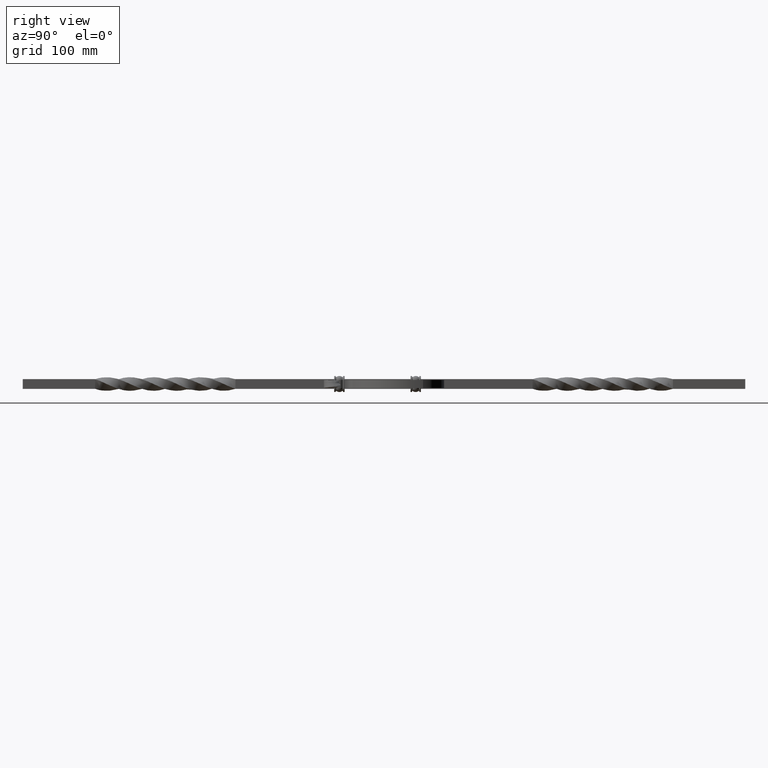
[diagram: clean part render]
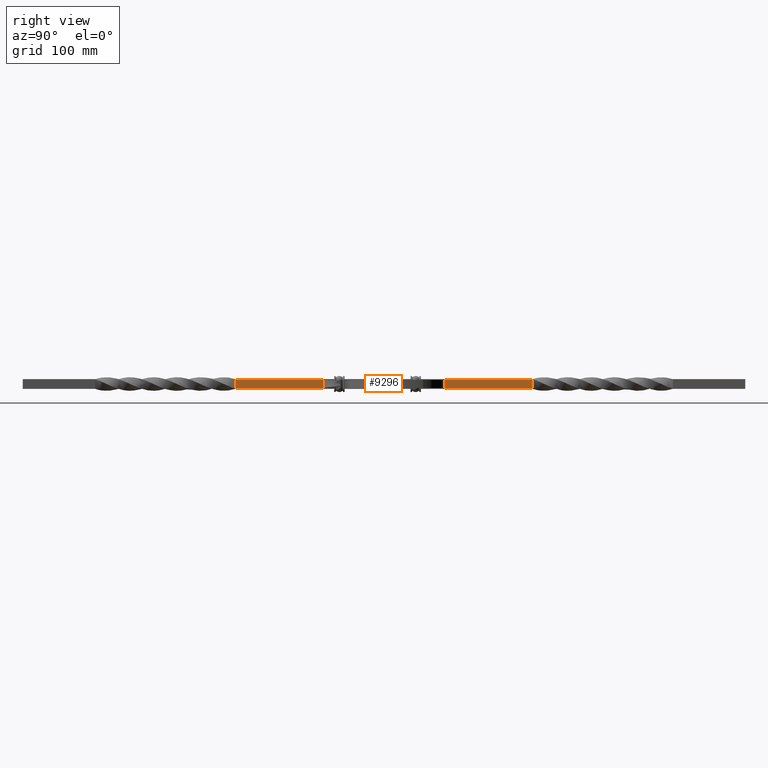
[diagram: same view with one face highlighted and labeled with its STEP entity id]
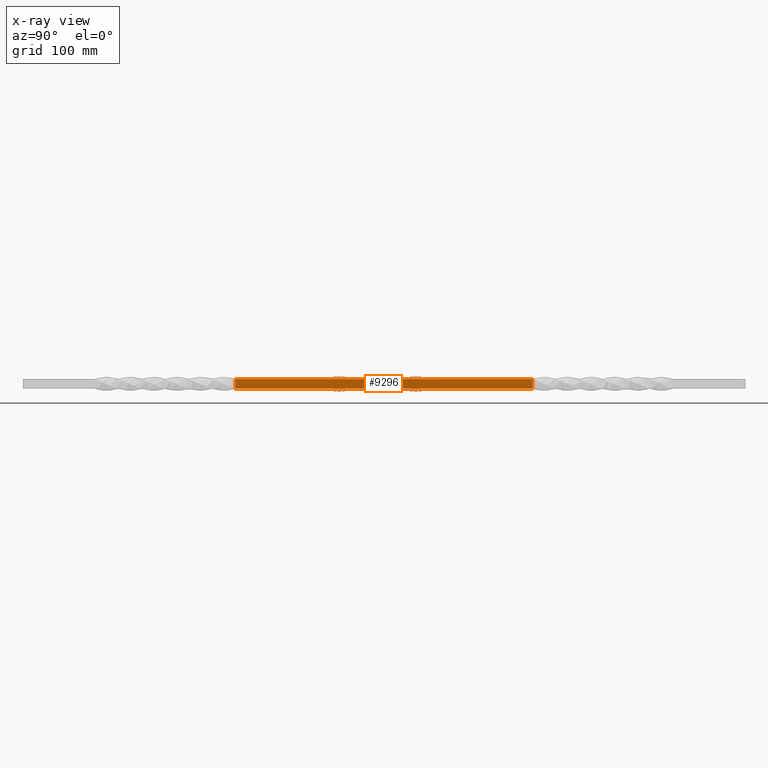
[diagram: x-ray of the same camera — body ghosted, the highlighted face saturated]
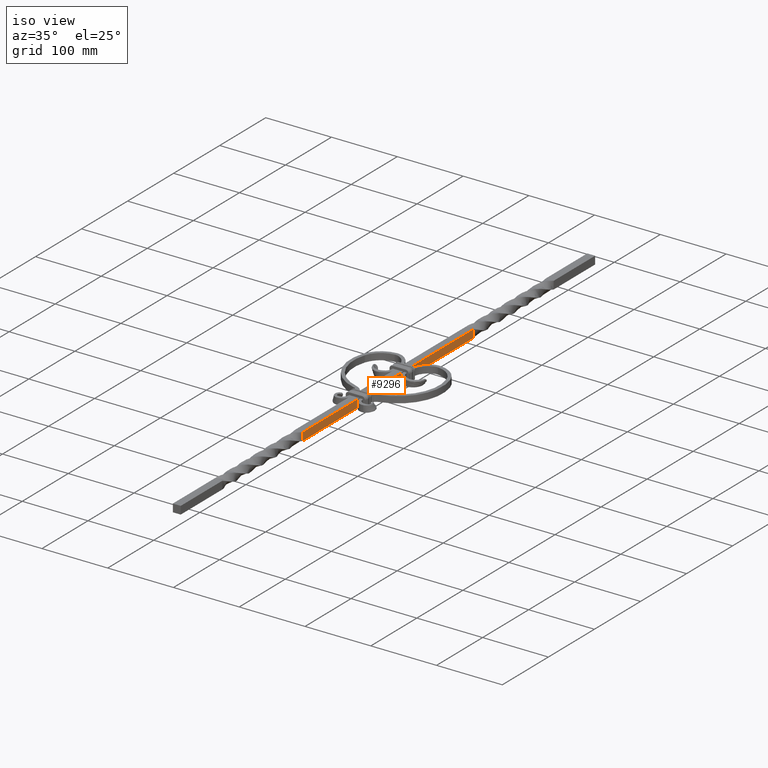
[diagram: same view with one face highlighted and labeled with its STEP entity id]
A machine part, right view. The second image highlights one B-rep face of the part: STEP entity #9296.
The next image is the same camera in x-ray: the body ghosted, the highlighted face saturated — about 0% of this face is hidden behind the body in this view.
A second angle (iso view) of the same face is appended — the face is thin or edge-on in the first view.
In plain terms, the highlighted planar face has unit normal (-1, -0, -0).
Its self-contained STEP definition (entity closure, byte-faithful):
#232 = DIRECTION ( 'NONE',  ( 9.333221386254594486E-18, -1.000000000000000000, -1.800135746611762171E-17 ) ) ;
#594 = VERTEX_POINT ( 'NONE', #12030 ) ;
#721 = EDGE_CURVE ( 'NONE', #19837, #17697, #8128, .T. ) ;
#1462 = VECTOR ( 'NONE', #5356, 1000.000000000000000 ) ;
#1868 = VECTOR ( 'NONE', #12476, 1000.000000000000000 ) ;
#1890 = CARTESIAN_POINT ( 'NONE',  ( 6.000000000000023093, 450.0000000000000000, -5.999999999999964473 ) ) ;
#2282 = VERTEX_POINT ( 'NONE', #11409 ) ;
#2314 = EDGE_CURVE ( 'NONE', #15054, #4865, #11852, .T. ) ;
#2677 = DIRECTION ( 'NONE',  ( 9.333221386254594486E-18, -1.000000000000000000, -1.800135746611762479E-17 ) ) ;
#3033 = CARTESIAN_POINT ( 'NONE',  ( 6.000013611403646863, -185.0000053381125440, 6.000001659163470613 ) ) ;
#3774 = AXIS2_PLACEMENT_3D ( 'NONE', #10472, #14220, #10395 ) ;
#4024 = LINE ( 'NONE', #16845, #12216 ) ;
#4289 = EDGE_CURVE ( 'NONE', #6130, #12467, #18159, .T. ) ;
#4723 = CARTESIAN_POINT ( 'NONE',  ( 6.000012850454217173, 185.0000040164767370, -6.000001086903428593 ) ) ;
#4865 = VERTEX_POINT ( 'NONE', #6049 ) ;
#5001 = VECTOR ( 'NONE', #232, 1000.000000000000000 ) ;
#5162 = VECTOR ( 'NONE', #19052, 1000.000000000000000 ) ;
#5356 = DIRECTION ( 'NONE',  ( 9.333221386254594486E-18, -1.000000000000000000, -1.800135746611762479E-17 ) ) ;
#6049 = CARTESIAN_POINT ( 'NONE',  ( 6.000013611403646863, -185.0000053381125440, 6.000001659163470613 ) ) ;
#6130 = VERTEX_POINT ( 'NONE', #6274 ) ;
#6274 = CARTESIAN_POINT ( 'NONE',  ( 5.999999999999975131, 32.99999999999997158, 6.000000000000029310 ) ) ;
#6857 = EDGE_CURVE ( 'NONE', #12467, #8907, #16721, .T. ) ;
#6983 = EDGE_CURVE ( 'NONE', #2282, #10579, #13999, .T. ) ;
#6993 = EDGE_LOOP ( 'NONE', ( #13567, #8940, #15801, #10283, #10962, #15699, #14180, #13316, #15336, #22370, #14336, #15366 ) ) ;
#7100 = CARTESIAN_POINT ( 'NONE',  ( 6.000001498873439587, -185.0000053074768687, -6.000012699848763731 ) ) ;
#7122 = CARTESIAN_POINT ( 'NONE',  ( 5.999999999999976907, -62.04958985097748325, 6.000000000000004441 ) ) ;
#7130 = CARTESIAN_POINT ( 'NONE',  ( 5.999999999999971578, 450.0000000000000000, 6.000000000000004441 ) ) ;
#7149 = CARTESIAN_POINT ( 'NONE',  ( 5.999999999999971578, 450.0000000000000000, 6.000000000000037303 ) ) ;
#8128 = LINE ( 'NONE', #17733, #1868 ) ;
#8297 = CARTESIAN_POINT ( 'NONE',  ( 6.000001086903443692, 185.0000040164767654, 6.000012850454223390 ) ) ;
#8803 = VECTOR ( 'NONE', #18343, 1000.000000000000000 ) ;
#8907 = VERTEX_POINT ( 'NONE', #7122 ) ;
#8926 = FACE_OUTER_BOUND ( 'NONE', #6993, .T. ) ;
#8940 = ORIENTED_EDGE ( 'NONE', *, *, #16889, .F. ) ;
#9186 = LINE ( 'NONE', #17292, #10296 ) ;
#9296 = ADVANCED_FACE ( 'NONE', ( #8926 ), #17487, .F. ) ;
#9704 = EDGE_CURVE ( 'NONE', #8907, #4865, #4024, .T. ) ;
#10283 = ORIENTED_EDGE ( 'NONE', *, *, #6857, .T. ) ;
#10296 = VECTOR ( 'NONE', #18886, 1000.000000000000000 ) ;
#10395 = DIRECTION ( 'NONE',  ( -4.296331808835892763E-15, -1.800135746611766177E-17, 1.000000000000000000 ) ) ;
#10472 = CARTESIAN_POINT ( 'NONE',  ( 6.000000000000023093, 450.0000000000000000, -5.999999999999964473 ) ) ;
#10536 = VERTEX_POINT ( 'NONE', #19980 ) ;
#10579 = VERTEX_POINT ( 'NONE', #21593 ) ;
#10962 = ORIENTED_EDGE ( 'NONE', *, *, #9704, .T. ) ;
#10968 = CARTESIAN_POINT ( 'NONE',  ( 5.999999999999976019, -49.04958985097749036, 6.000000000000000888 ) ) ;
#11224 = CARTESIAN_POINT ( 'NONE',  ( 6.000000000000023093, 450.0000000000000000, -5.999999999999964473 ) ) ;
#11409 = CARTESIAN_POINT ( 'NONE',  ( 6.000012850454217173, 185.0000040164767370, -6.000001086903428593 ) ) ;
#11502 = CARTESIAN_POINT ( 'NONE',  ( 6.000014637220303371, 185.0000017354701356, 1.999999991245698050 ) ) ;
#11731 = CARTESIAN_POINT ( 'NONE',  ( 6.000021004258773161, -185.0000051440753452, 1.999996463981507766 ) ) ;
#11852 = B_SPLINE_CURVE_WITH_KNOTS ( 'NONE', 3,
 ( #22156, #18660, #11731, #3033 ),
 .UNSPECIFIED., .F., .F.,
 ( 4, 4 ),
 ( 0.000000000000000000, 1.000000000000000000 ),
 .UNSPECIFIED. ) ;
#12030 = CARTESIAN_POINT ( 'NONE',  ( 6.000001086903443692, 185.0000040164767654, 6.000012850454223390 ) ) ;
#12216 = VECTOR ( 'NONE', #20408, 1000.000000000000000 ) ;
#12467 = VERTEX_POINT ( 'NONE', #10968 ) ;
#12476 = DIRECTION ( 'NONE',  ( -9.333221386255377184E-18, 1.000000000000000000, 2.001604010742470009E-16 ) ) ;
#12862 = VECTOR ( 'NONE', #14170, 1000.000000000000000 ) ;
#13316 = ORIENTED_EDGE ( 'NONE', *, *, #721, .T. ) ;
#13567 = ORIENTED_EDGE ( 'NONE', *, *, #20373, .T. ) ;
#13999 = LINE ( 'NONE', #16528, #8803 ) ;
#14060 = CARTESIAN_POINT ( 'NONE',  ( 6.000000000000023093, 450.0000000000000000, -5.999999999999964473 ) ) ;
#14170 = DIRECTION ( 'NONE',  ( -9.333221386254517449E-18, 1.000000000000000000, 1.019903645028503710E-30 ) ) ;
#14180 = ORIENTED_EDGE ( 'NONE', *, *, #14198, .F. ) ;
#14198 = EDGE_CURVE ( 'NONE', #19837, #15054, #19985, .T. ) ;
#14220 = DIRECTION ( 'NONE',  ( -1.000000000000000000, -9.333221386254517449E-18, -4.296331808835892763E-15 ) ) ;
#14336 = ORIENTED_EDGE ( 'NONE', *, *, #6983, .F. ) ;
#14337 = EDGE_CURVE ( 'NONE', #594, #2282, #19871, .T. ) ;
#15054 = VERTEX_POINT ( 'NONE', #7100 ) ;
#15336 = ORIENTED_EDGE ( 'NONE', *, *, #18312, .F. ) ;
#15366 = ORIENTED_EDGE ( 'NONE', *, *, #14337, .F. ) ;
#15699 = ORIENTED_EDGE ( 'NONE', *, *, #2314, .F. ) ;
#15801 = ORIENTED_EDGE ( 'NONE', *, *, #4289, .T. ) ;
#15901 = CARTESIAN_POINT ( 'NONE',  ( 5.999999999999975131, 45.99999999999998579, 6.000000000000030198 ) ) ;
#16528 = CARTESIAN_POINT ( 'NONE',  ( 6.000000000000023093, 450.0000000000000000, -5.999999999999964473 ) ) ;
#16721 = LINE ( 'NONE', #7149, #5001 ) ;
#16845 = CARTESIAN_POINT ( 'NONE',  ( 5.999999999999971578, 450.0000000000000000, 6.000000000000037303 ) ) ;
#16889 = EDGE_CURVE ( 'NONE', #6130, #19120, #20742, .T. ) ;
#17292 = CARTESIAN_POINT ( 'NONE',  ( 5.999999999999971578, 450.0000000000000000, 6.000000000000037303 ) ) ;
#17438 = EDGE_CURVE ( 'NONE', #10579, #10536, #19107, .T. ) ;
#17487 = PLANE ( 'NONE',  #3774 ) ;
#17697 = VERTEX_POINT ( 'NONE', #20802 ) ;
#17733 = CARTESIAN_POINT ( 'NONE',  ( 6.000000000000026645, -49.04958985097749036, -6.000000000000000000 ) ) ;
#17918 = VECTOR ( 'NONE', #18417, 1000.000000000000000 ) ;
#18159 = LINE ( 'NONE', #20391, #17918 ) ;
#18312 = EDGE_CURVE ( 'NONE', #10536, #17697, #20409, .T. ) ;
#18343 = DIRECTION ( 'NONE',  ( 9.333221386254594486E-18, -1.000000000000000000, -1.800135746611762479E-17 ) ) ;
#18417 = DIRECTION ( 'NONE',  ( 9.333221386254594486E-18, -1.000000000000000000, -1.800135746611762171E-17 ) ) ;
#18445 = CARTESIAN_POINT ( 'NONE',  ( 6.000000000000026645, -62.04958985097748325, -6.000000000000002665 ) ) ;
#18660 = CARTESIAN_POINT ( 'NONE',  ( 6.000014259201599920, -185.0000051440639481, -2.000008254304787680 ) ) ;
#18886 = DIRECTION ( 'NONE',  ( 9.333221386254594486E-18, -1.000000000000000000, -1.800135746611762171E-17 ) ) ;
#19052 = DIRECTION ( 'NONE',  ( 9.333221386254594486E-18, -1.000000000000000000, -1.800135746611762479E-17 ) ) ;
#19107 = LINE ( 'NONE', #11224, #20171 ) ;
#19120 = VERTEX_POINT ( 'NONE', #15901 ) ;
#19837 = VERTEX_POINT ( 'NONE', #18445 ) ;
#19871 = B_SPLINE_CURVE_WITH_KNOTS ( 'NONE', 3,
 ( #8297, #11502, #22099, #4723 ),
 .UNSPECIFIED., .F., .F.,
 ( 4, 4 ),
 ( 0.000000000000000000, 1.000000000000000000 ),
 .UNSPECIFIED. ) ;
#19980 = CARTESIAN_POINT ( 'NONE',  ( 6.000000000000025757, 33.00000000000000000, -6.000000000000003553 ) ) ;
#19985 = LINE ( 'NONE', #14060, #1462 ) ;
#20171 = VECTOR ( 'NONE', #2677, 1000.000000000000000 ) ;
#20373 = EDGE_CURVE ( 'NONE', #594, #19120, #9186, .T. ) ;
#20391 = CARTESIAN_POINT ( 'NONE',  ( 5.999999999999971578, 450.0000000000000000, 6.000000000000037303 ) ) ;
#20408 = DIRECTION ( 'NONE',  ( 9.333221386254594486E-18, -1.000000000000000000, -1.800135746611762171E-17 ) ) ;
#20409 = LINE ( 'NONE', #1890, #5162 ) ;
#20742 = LINE ( 'NONE', #7130, #12862 ) ;
#20802 = CARTESIAN_POINT ( 'NONE',  ( 6.000000000000026645, -49.04958985097746194, -5.999999999999973355 ) ) ;
#21593 = CARTESIAN_POINT ( 'NONE',  ( 6.000000000000025757, 46.00000000000000000, -6.000000000000003553 ) ) ;
#22099 = CARTESIAN_POINT ( 'NONE',  ( 6.000021740676940496, 185.0000051777393821, -2.000000008745232982 ) ) ;
#22156 = CARTESIAN_POINT ( 'NONE',  ( 6.000001498873439587, -185.0000053074768687, -6.000012699848763731 ) ) ;
#22370 = ORIENTED_EDGE ( 'NONE', *, *, #17438, .F. ) ;